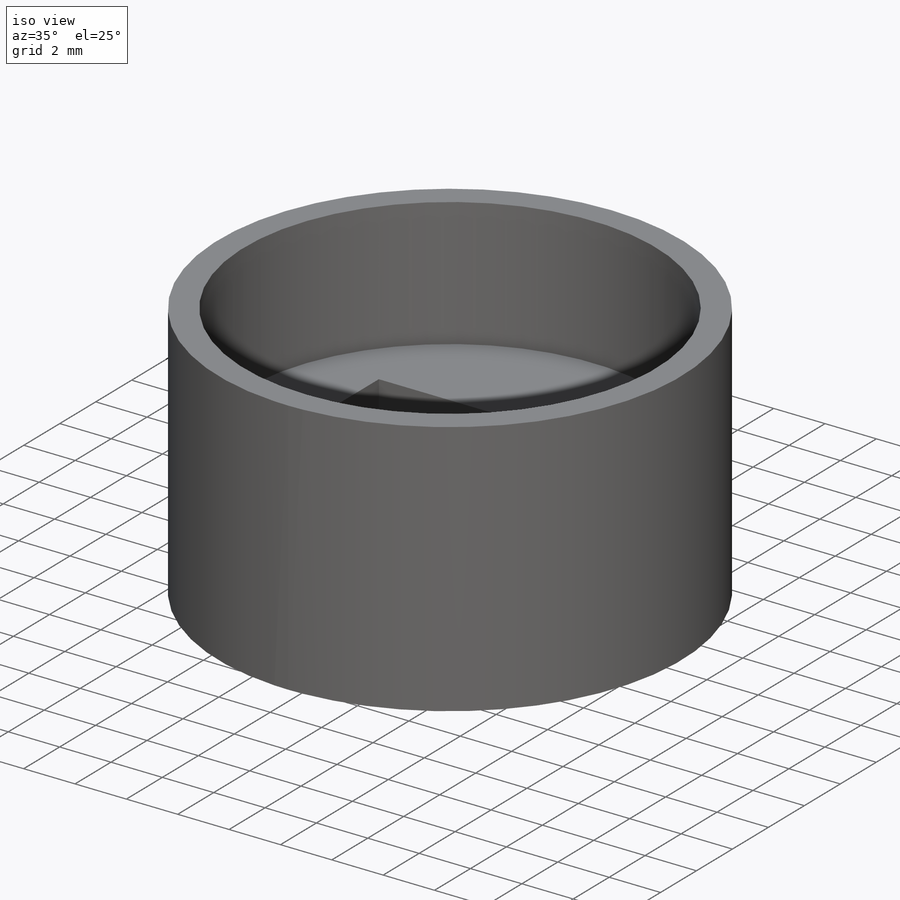
[diagram: iso view]
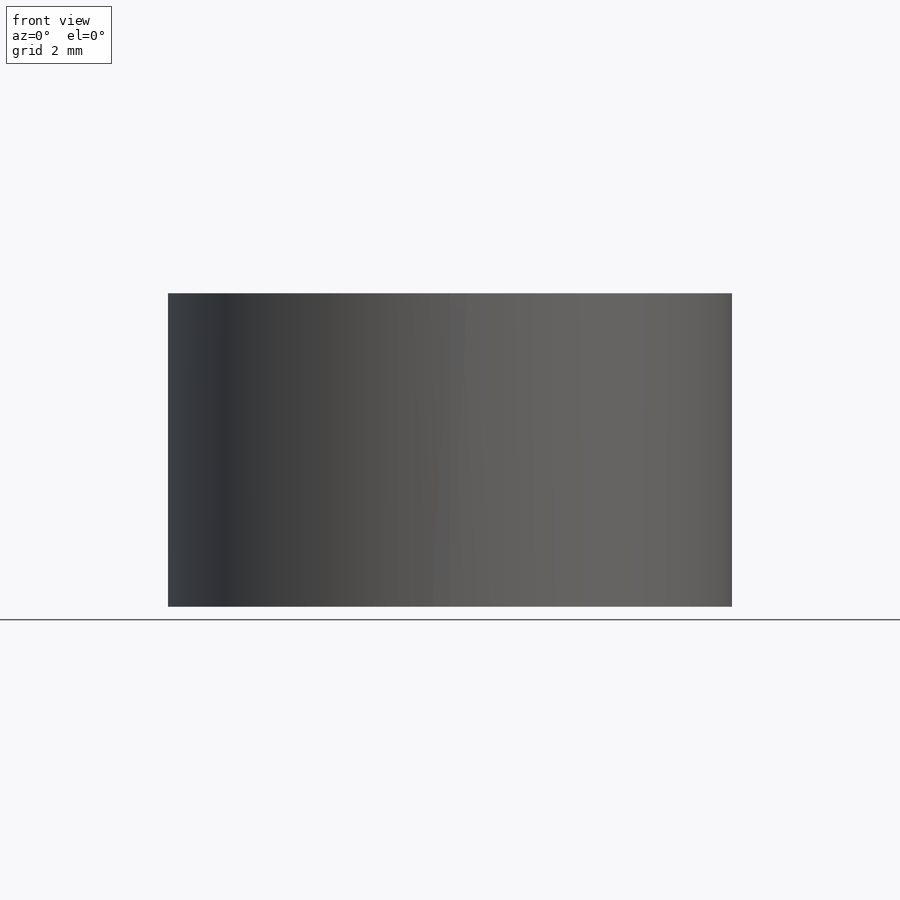
[diagram: front view]
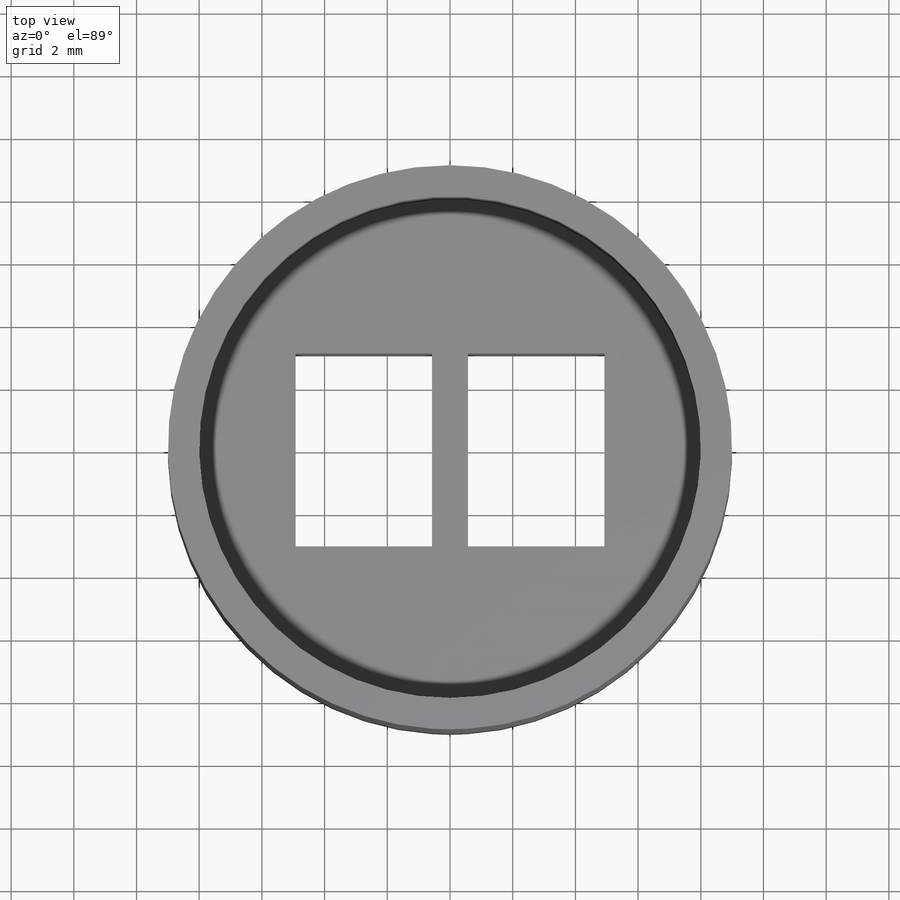
[diagram: top view]
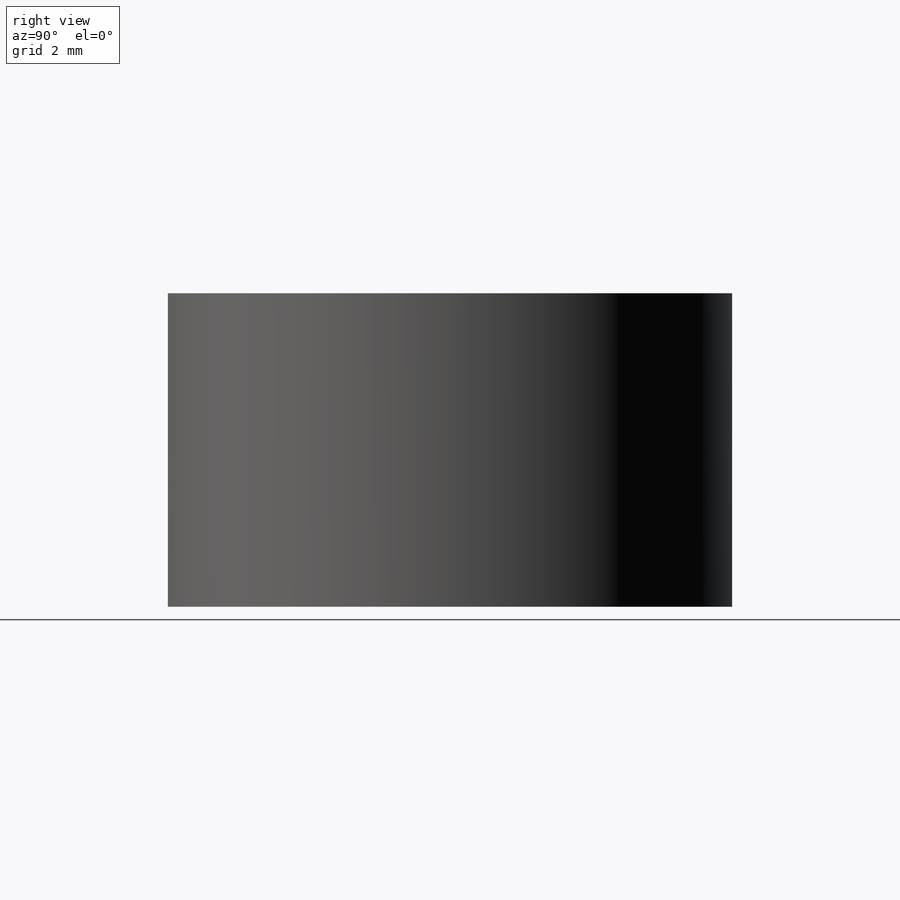
[diagram: right view]
SOLIDWORKS PART (.sldprt)
format: sldprt  version: not decoded by parser v0  size: 145,408 bytes
history: native  units: mm
features: sketch x3, cut_extrude x2, material x1, extrude x1 (+12 scaffold rows collapsed)
feature tree (19):
  scaffold x12  (default folders/planes/origin — collapsed)
  material  "Material <not specified>"
  sketch  "Sketch2"  dims[D1=18.0mm]
  extrude  "Boss-Extrude2"  Depth=10mm
  sketch  "Sketch3"  dims[D1=16.0mm]
  cut_extrude  "Cut-Extrude1"  Depth=5mm
  sketch  "Sketch4"  dims[c1.D1=4.35mm c1.D2=~8.617831mm c2.D2=90.0deg c3.D2=6.15mm c3.D3=4.35mm c3.D4=6.15mm c3.D5=2.75mm c3.D6=2.75mm]
  cut_extrude  "Cut-Extrude2"  [1 undecoded]
decode coverage: 5 of 6 modeling features carry decoded parameters
note: ~ marks probable driven/reference dimensions
note: 1 parameter value undecoded
note: suppression state not decoded; provenance and decode notes live in map.json
